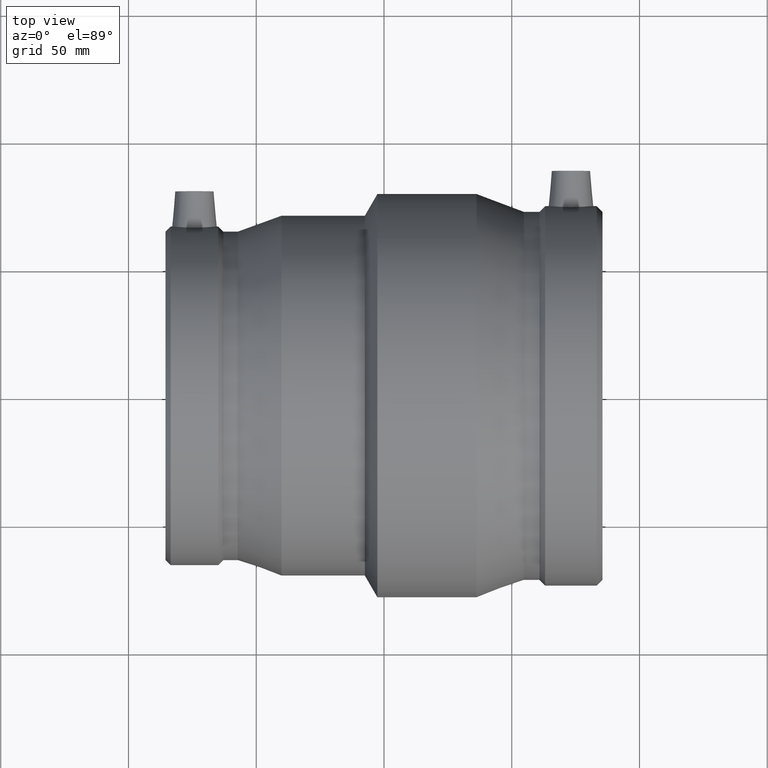
[diagram: clean part render]
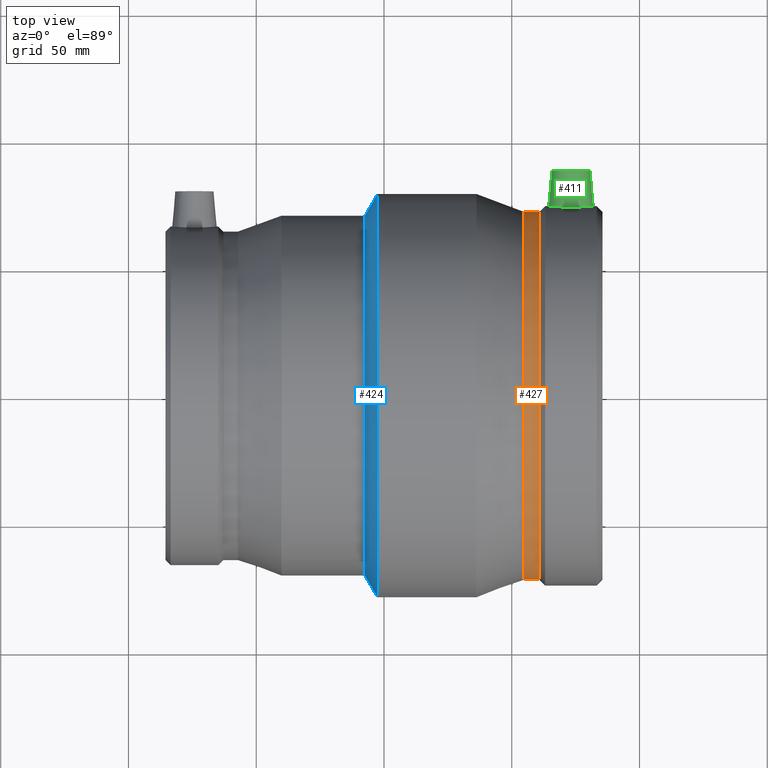
[diagram: same view with three faces highlighted in distinct colors, each labeled with its STEP entity id]
A machine part, top view with three faces highlighted in distinct colors.
Their STEP definitions:

[orange] entity #427 — the highlighted cylindrical surface (bore or boss wall) has radius 72.0322 mm, axis along (1, 0, 0).
#50=FACE_BOUND('',#166,.T.);
#76=CYLINDRICAL_SURFACE('',#489,72.0322);
#105=FACE_OUTER_BOUND('',#165,.T.);
#165=EDGE_LOOP('',(#358));
#166=EDGE_LOOP('',(#359));
#220=CIRCLE('',#488,72.0322);
#221=CIRCLE('',#490,72.0322);
#259=VERTEX_POINT('',#809);
#260=VERTEX_POINT('',#812);
#298=EDGE_CURVE('',#259,#259,#220,.T.);
#299=EDGE_CURVE('',#260,#260,#221,.T.);
#358=ORIENTED_EDGE('',*,*,#298,.T.);
#359=ORIENTED_EDGE('',*,*,#299,.F.);
#427=ADVANCED_FACE('',(#105,#50),#76,.T.);
#488=AXIS2_PLACEMENT_3D('',#810,#608,#609);
#489=AXIS2_PLACEMENT_3D('',#811,#610,#611);
#490=AXIS2_PLACEMENT_3D('',#813,#612,#613);
#608=DIRECTION('center_axis',(1.,0.,0.));
#609=DIRECTION('ref_axis',(0.,0.,-1.));
#610=DIRECTION('center_axis',(1.,0.,0.));
#611=DIRECTION('ref_axis',(0.,1.,0.));
#612=DIRECTION('center_axis',(1.,0.,0.));
#613=DIRECTION('ref_axis',(0.,0.,-1.));
#809=CARTESIAN_POINT('',(54.6875,72.0322,0.));
#810=CARTESIAN_POINT('Origin',(54.6875,0.,0.));
#811=CARTESIAN_POINT('Origin',(57.76875,0.,0.));
#812=CARTESIAN_POINT('',(60.85,72.0322,0.));
#813=CARTESIAN_POINT('Origin',(60.85,0.,0.));

[blue] entity #424 — the highlighted conical surface has half-angle 60 deg.
#22=CONICAL_SURFACE('',#483,74.75,60.);
#47=FACE_BOUND('',#160,.T.);
#102=FACE_OUTER_BOUND('',#159,.T.);
#159=EDGE_LOOP('',(#352));
#160=EDGE_LOOP('',(#353));
#217=CIRCLE('',#482,70.5);
#218=CIRCLE('',#484,79.);
#256=VERTEX_POINT('',#800);
#257=VERTEX_POINT('',#803);
#295=EDGE_CURVE('',#256,#256,#217,.T.);
#296=EDGE_CURVE('',#257,#257,#218,.T.);
#352=ORIENTED_EDGE('',*,*,#295,.T.);
#353=ORIENTED_EDGE('',*,*,#296,.F.);
#424=ADVANCED_FACE('',(#102,#47),#22,.T.);
#482=AXIS2_PLACEMENT_3D('',#801,#596,#597);
#483=AXIS2_PLACEMENT_3D('',#802,#598,#599);
#484=AXIS2_PLACEMENT_3D('',#804,#600,#601);
#596=DIRECTION('center_axis',(1.,0.,0.));
#597=DIRECTION('ref_axis',(0.,0.,-1.));
#598=DIRECTION('center_axis',(1.,0.,0.));
#599=DIRECTION('ref_axis',(0.,1.,0.));
#600=DIRECTION('center_axis',(1.,0.,0.));
#601=DIRECTION('ref_axis',(0.,0.,-1.));
#800=CARTESIAN_POINT('',(-7.5,70.5,0.));
#801=CARTESIAN_POINT('Origin',(-7.5,0.,0.));
#802=CARTESIAN_POINT('Origin',(-5.0462613559441,0.,0.));
#803=CARTESIAN_POINT('',(-2.59252271188819,79.,0.));
#804=CARTESIAN_POINT('Origin',(-2.59252271188819,0.,0.));

[green] entity #411 — the highlighted conical surface has half-angle 5 deg.
#15=B_SPLINE_CURVE_WITH_KNOTS('',3,(#697,#698,#699,#700,#701,#702,#703,
#704,#705,#706,#707,#708,#709,#710,#711,#712,#713,#714,#715,#716,#717,#718,
#719,#720,#721,#722,#723,#724,#725,#726,#727,#728,#729,#730),
 .UNSPECIFIED.,.T.,.F.,(4,2,2,2,2,2,2,2,2,2,2,2,2,2,2,2,4),(0.,0.329174991896132,
0.658349983792263,0.987130054518636,1.31591012524501,1.64469019597138,1.97347026669776,
2.30264525859389,2.63182025049002,2.96099524238615,3.29017023428228,3.61895030500865,
3.94773037573503,4.2765104464614,4.60529051718777,4.93446550908391,5.26364050098004),
 .UNSPECIFIED.);
#17=CONICAL_SURFACE('',#458,7.5,5.);
#33=FACE_BOUND('',#133,.T.);
#89=FACE_OUTER_BOUND('',#132,.T.);
#132=EDGE_LOOP('',(#325));
#133=EDGE_LOOP('',(#326));
#205=CIRCLE('',#457,7.5);
#242=VERTEX_POINT('',#693);
#243=VERTEX_POINT('',#696);
#281=EDGE_CURVE('',#242,#242,#205,.T.);
#282=EDGE_CURVE('',#243,#243,#15,.T.);
#325=ORIENTED_EDGE('',*,*,#281,.T.);
#326=ORIENTED_EDGE('',*,*,#282,.F.);
#411=ADVANCED_FACE('',(#89,#33),#17,.T.);
#457=AXIS2_PLACEMENT_3D('',#694,#546,#547);
#458=AXIS2_PLACEMENT_3D('',#695,#548,#549);
#546=DIRECTION('center_axis',(0.,-1.,0.));
#547=DIRECTION('ref_axis',(1.,0.,0.));
#548=DIRECTION('center_axis',(0.,-1.,0.));
#549=DIRECTION('ref_axis',(1.,0.,0.));
#693=CARTESIAN_POINT('',(65.675,88.,9.18485099360515E-16));
#694=CARTESIAN_POINT('Origin',(73.175,88.,0.));
#695=CARTESIAN_POINT('Origin',(73.175,88.,0.));
#696=CARTESIAN_POINT('',(73.175,73.7430126135836,-8.74732477234353));
#697=CARTESIAN_POINT('Ctrl Pts',(73.175,73.7430126135836,-8.74732477234353));
#698=CARTESIAN_POINT('Ctrl Pts',(74.2722499729871,73.7430126135836,-8.74732477234353));
#699=CARTESIAN_POINT('Ctrl Pts',(75.4412476545416,73.7703153832784,-8.52594702412124));
#700=CARTESIAN_POINT('Ctrl Pts',(77.5884027008411,73.8684763735224,-7.62885314771746));
#701=CARTESIAN_POINT('Ctrl Pts',(78.5666649247249,73.9378745493633,-6.95322883510433));
#702=CARTESIAN_POINT('Ctrl Pts',(80.1083003148371,74.0675998765401,-5.39869169734548));
#703=CARTESIAN_POINT('Ctrl Pts',(80.7752863093855,74.1363877547324,-4.4162230965667));
#704=CARTESIAN_POINT('Ctrl Pts',(81.659696667975,74.2332629949682,-2.26487983722118));
#705=CARTESIAN_POINT('Ctrl Pts',(81.8770942368462,74.26,-1.09593356908791));
#706=CARTESIAN_POINT('Ctrl Pts',(81.8770942368462,74.26,1.09593356908791));
#707=CARTESIAN_POINT('Ctrl Pts',(81.659696667975,74.2332629949682,2.26487983722118));
#708=CARTESIAN_POINT('Ctrl Pts',(80.7752863093855,74.1363877547324,4.4162230965667));
#709=CARTESIAN_POINT('Ctrl Pts',(80.1083003148371,74.0675998765401,5.39869169734548));
#710=CARTESIAN_POINT('Ctrl Pts',(78.5666649247249,73.9378745493633,6.95322883510433));
#711=CARTESIAN_POINT('Ctrl Pts',(77.5884027008411,73.8684763735224,7.62885314771746));
#712=CARTESIAN_POINT('Ctrl Pts',(75.4412476545416,73.7703153832784,8.52594702412124));
#713=CARTESIAN_POINT('Ctrl Pts',(74.2722499729871,73.7430126135836,8.74732477234353));
#714=CARTESIAN_POINT('Ctrl Pts',(72.0777500270129,73.7430126135836,8.74732477234353));
#715=CARTESIAN_POINT('Ctrl Pts',(70.9087523454584,73.7703153832784,8.52594702412124));
#716=CARTESIAN_POINT('Ctrl Pts',(68.761597299159,73.8684763735224,7.62885314771746));
#717=CARTESIAN_POINT('Ctrl Pts',(67.7833350752751,73.9378745493633,6.95322883510433));
#718=CARTESIAN_POINT('Ctrl Pts',(66.241699685163,74.0675998765401,5.39869169734548));
#719=CARTESIAN_POINT('Ctrl Pts',(65.5747136906146,74.1363877547324,4.4162230965667));
#720=CARTESIAN_POINT('Ctrl Pts',(64.690303332025,74.2332629949682,2.26487983722117));
#721=CARTESIAN_POINT('Ctrl Pts',(64.4729057631538,74.26,1.09593356908791));
#722=CARTESIAN_POINT('Ctrl Pts',(64.4729057631538,74.26,-1.09593356908791));
#723=CARTESIAN_POINT('Ctrl Pts',(64.690303332025,74.2332629949682,-2.26487983722116));
#724=CARTESIAN_POINT('Ctrl Pts',(65.5747136906146,74.1363877547324,-4.41622309656669));
#725=CARTESIAN_POINT('Ctrl Pts',(66.241699685163,74.0675998765401,-5.39869169734548));
#726=CARTESIAN_POINT('Ctrl Pts',(67.7833350752751,73.9378745493633,-6.95322883510433));
#727=CARTESIAN_POINT('Ctrl Pts',(68.761597299159,73.8684763735224,-7.62885314771746));
#728=CARTESIAN_POINT('Ctrl Pts',(70.9087523454584,73.7703153832784,-8.52594702412124));
#729=CARTESIAN_POINT('Ctrl Pts',(72.0777500270129,73.7430126135836,-8.74732477234353));
#730=CARTESIAN_POINT('Ctrl Pts',(73.175,73.7430126135836,-8.74732477234353));